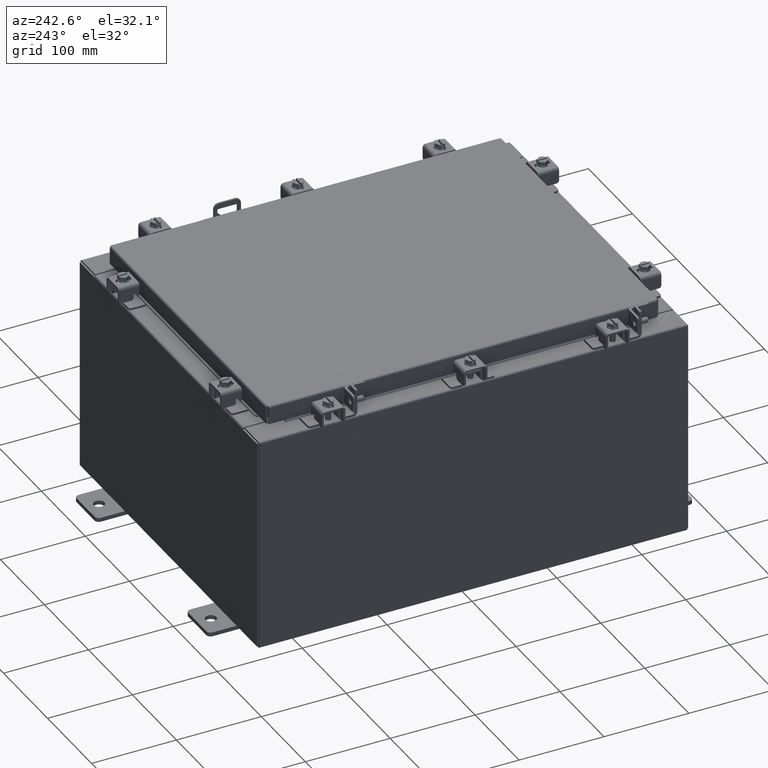
[diagram: clean part render]
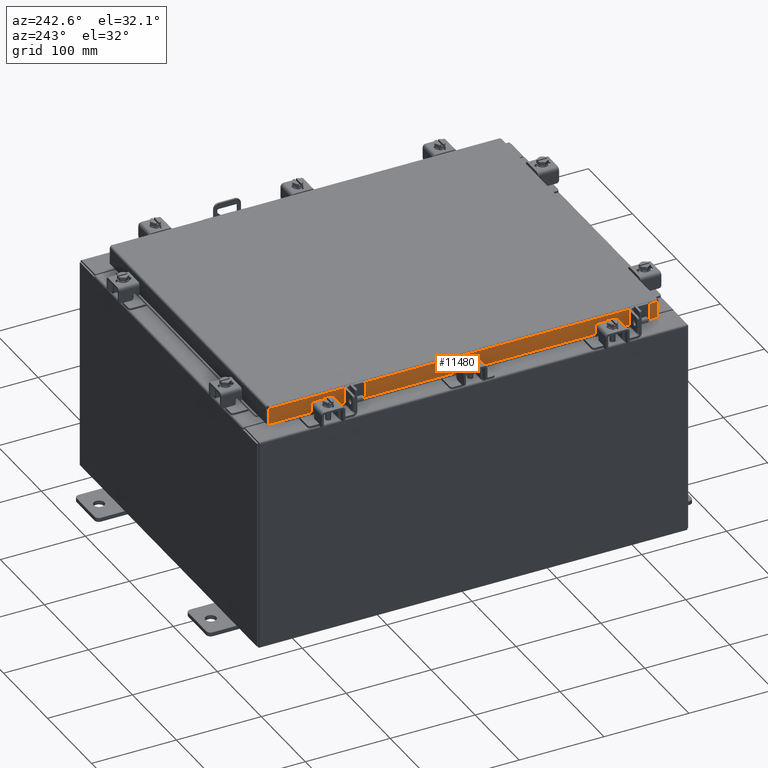
[diagram: same view with one face highlighted and labeled with its STEP entity id]
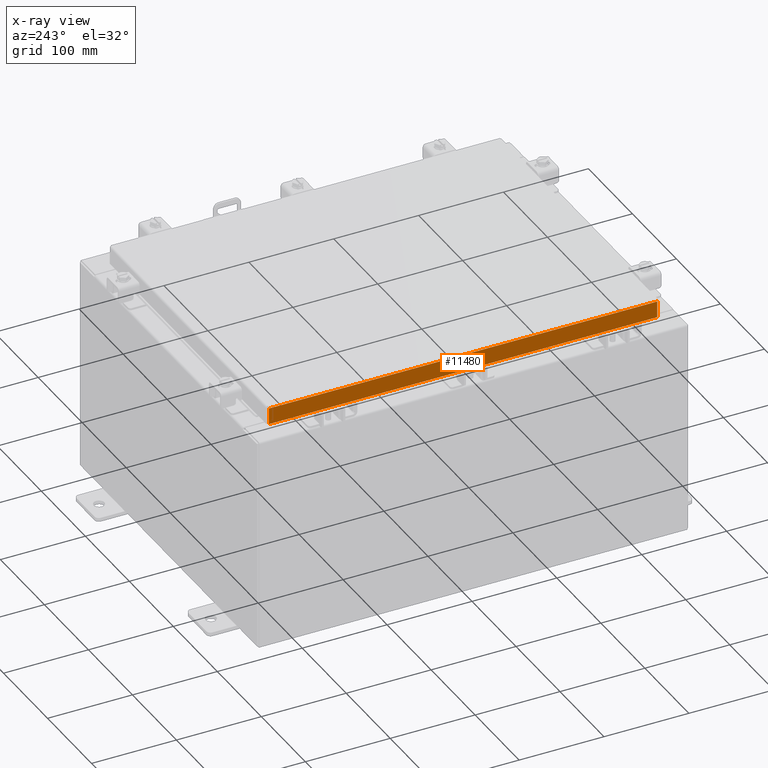
[diagram: x-ray of the same camera — body ghosted, the highlighted face saturated]
A machine part, auxiliary view. The second image highlights one B-rep face of the part: STEP entity #11480.
The next image is the same camera in x-ray: the body ghosted, the highlighted face saturated — about 0% of this face is hidden behind the body in this view.
In plain terms, the highlighted planar face has unit normal (1, 0, -0).
Its self-contained STEP definition (entity closure, byte-faithful):
#47 = CARTESIAN_POINT ( 'NONE',  ( -7.078000000000003800, -2.397446165233042600E-030, 2.021285296895435800E-014 ) ) ;
#907 = DIRECTION ( 'NONE',  ( 3.387180227794633400E-031, -1.000000000000000000, -9.232666117091638000E-046 ) ) ;
#1335 = CARTESIAN_POINT ( 'NONE',  ( -7.078000000000001200, -8.255157864376261800, -0.8500000000000023100 ) ) ;
#1437 = VECTOR ( 'NONE', #907, 39.37007874015748100 ) ;
#1617 = VECTOR ( 'NONE', #7447, 39.37007874015748100 ) ;
#1834 = DIRECTION ( 'NONE',  ( -2.818880942772360100E-015, 0.0000000000000000000, -1.000000000000000000 ) ) ;
#2353 = VERTEX_POINT ( 'NONE', #20641 ) ;
#2512 = DIRECTION ( 'NONE',  ( 4.379057701015054300E-047, 1.000000000000000000, 1.201604571657912400E-016 ) ) ;
#2659 = CARTESIAN_POINT ( 'NONE',  ( -7.078000000000003800, -9.094000000000003000, -0.08770000000000007000 ) ) ;
#2811 = VERTEX_POINT ( 'NONE', #1335 ) ;
#3355 = LINE ( 'NONE', #4687, #21229 ) ;
#4036 = ORIENTED_EDGE ( 'NONE', *, *, #11045, .F. ) ;
#4687 = CARTESIAN_POINT ( 'NONE',  ( -7.078000000000001200, -8.255157864376263500, -0.8500000000000023100 ) ) ;
#4701 = FACE_OUTER_BOUND ( 'NONE', #7599, .T. ) ;
#4859 = VERTEX_POINT ( 'NONE', #9374 ) ;
#6687 = CARTESIAN_POINT ( 'NONE',  ( -7.078000000000005600, 9.005157864376270600, -0.8499999999999975400 ) ) ;
#7447 = DIRECTION ( 'NONE',  ( -2.818880942772360100E-015, 6.982962677686265900E-015, -1.000000000000000000 ) ) ;
#7599 = EDGE_LOOP ( 'NONE', ( #17510, #8682, #11837, #13027, #4036, #8147 ) ) ;
#8147 = ORIENTED_EDGE ( 'NONE', *, *, #9341, .F. ) ;
#8293 = LINE ( 'NONE', #17196, #16887 ) ;
#8305 = LINE ( 'NONE', #14404, #21510 ) ;
#8595 = VERTEX_POINT ( 'NONE', #12565 ) ;
#8682 = ORIENTED_EDGE ( 'NONE', *, *, #21977, .T. ) ;
#9341 = EDGE_CURVE ( 'NONE', #4859, #10200, #8305, .T. ) ;
#9374 = CARTESIAN_POINT ( 'NONE',  ( -7.078000000000003800, -9.005157864376270600, -0.08770000000000007000 ) ) ;
#9642 = EDGE_CURVE ( 'NONE', #2811, #8595, #3355, .T. ) ;
#9742 = VERTEX_POINT ( 'NONE', #6687 ) ;
#10200 = VERTEX_POINT ( 'NONE', #13521 ) ;
#10713 = LINE ( 'NONE', #2659, #1437 ) ;
#11045 = EDGE_CURVE ( 'NONE', #10200, #2811, #11210, .T. ) ;
#11210 = LINE ( 'NONE', #12940, #20325 ) ;
#11480 = ADVANCED_FACE ( 'NONE', ( #4701 ), #17357, .F. ) ;
#11837 = ORIENTED_EDGE ( 'NONE', *, *, #18985, .F. ) ;
#12272 = DIRECTION ( 'NONE',  ( 1.000000000000000000, 3.387180227794633400E-031, -2.818880942772360100E-015 ) ) ;
#12565 = CARTESIAN_POINT ( 'NONE',  ( -7.078000000000001200, 8.255157864376267100, -0.8500000000000023100 ) ) ;
#12675 = DIRECTION ( 'NONE',  ( -2.818880942772360100E-015, 6.982962677686265900E-015, -1.000000000000000000 ) ) ;
#12940 = CARTESIAN_POINT ( 'NONE',  ( -7.078000000000005600, -9.094000000000003000, -0.8499999999999996400 ) ) ;
#13027 = ORIENTED_EDGE ( 'NONE', *, *, #9642, .F. ) ;
#13521 = CARTESIAN_POINT ( 'NONE',  ( -7.078000000000005600, -9.005157864376265300, -0.8499999999999996400 ) ) ;
#14404 = CARTESIAN_POINT ( 'NONE',  ( -7.078000000000003800, -9.005157864376270600, -0.07469999999999978000 ) ) ;
#15118 = DIRECTION ( 'NONE',  ( -0.0000000000000000000, 1.000000000000000000, -0.0000000000000000000 ) ) ;
#15453 = DIRECTION ( 'NONE',  ( 4.379057701015054300E-047, 1.000000000000000000, 1.201604571657912400E-016 ) ) ;
#16511 = LINE ( 'NONE', #19458, #1617 ) ;
#16887 = VECTOR ( 'NONE', #15453, 39.37007874015748100 ) ;
#17196 = CARTESIAN_POINT ( 'NONE',  ( -7.078000000000005600, -9.094000000000003000, -0.8499999999999996400 ) ) ;
#17357 = PLANE ( 'NONE',  #19836 ) ;
#17510 = ORIENTED_EDGE ( 'NONE', *, *, #20433, .F. ) ;
#18985 = EDGE_CURVE ( 'NONE', #8595, #9742, #8293, .T. ) ;
#19458 = CARTESIAN_POINT ( 'NONE',  ( -7.078000000000003800, 9.005157864376265300, 8.309553424256679200E-014 ) ) ;
#19836 = AXIS2_PLACEMENT_3D ( 'NONE', #47, #12272, #1834 ) ;
#20325 = VECTOR ( 'NONE', #2512, 39.37007874015748100 ) ;
#20433 = EDGE_CURVE ( 'NONE', #2353, #4859, #10713, .T. ) ;
#20641 = CARTESIAN_POINT ( 'NONE',  ( -7.078000000000003800, 9.005157864376265300, -0.08770000000000007000 ) ) ;
#21229 = VECTOR ( 'NONE', #15118, 39.37007874015748100 ) ;
#21510 = VECTOR ( 'NONE', #12675, 39.37007874015748100 ) ;
#21977 = EDGE_CURVE ( 'NONE', #2353, #9742, #16511, .T. ) ;